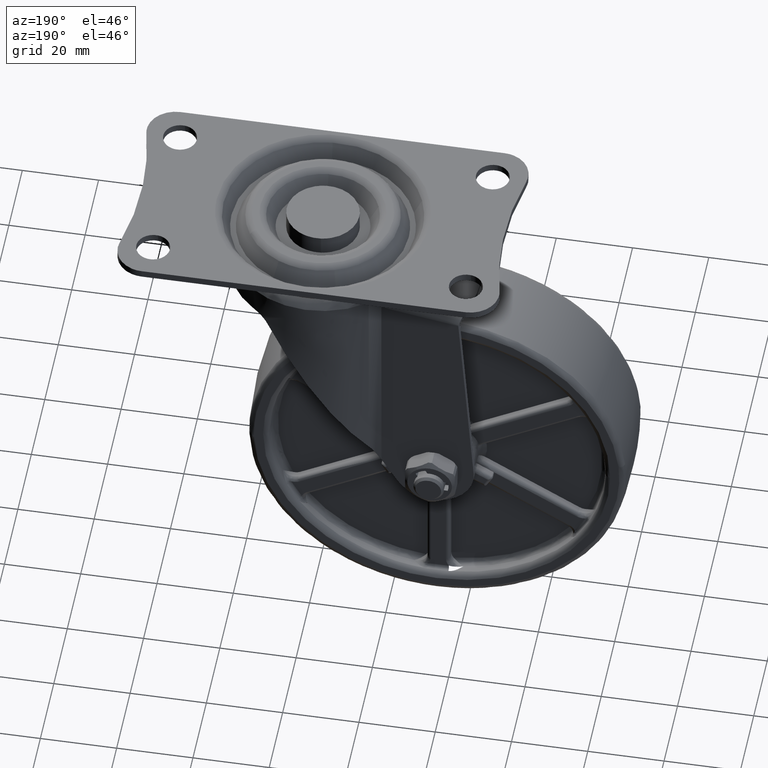
[diagram: clean part render]
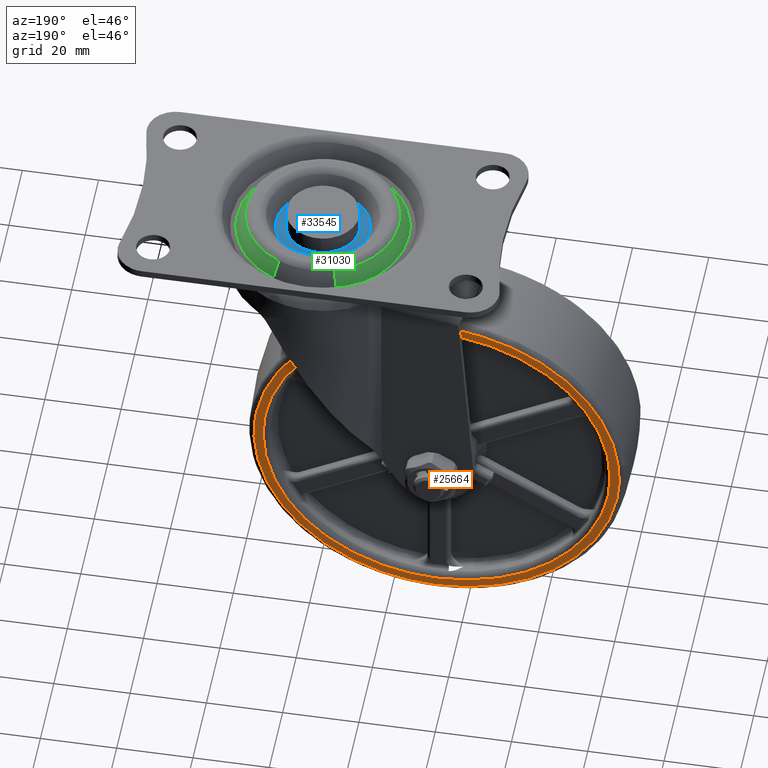
[diagram: same view with three faces highlighted in distinct colors, each labeled with its STEP entity id]
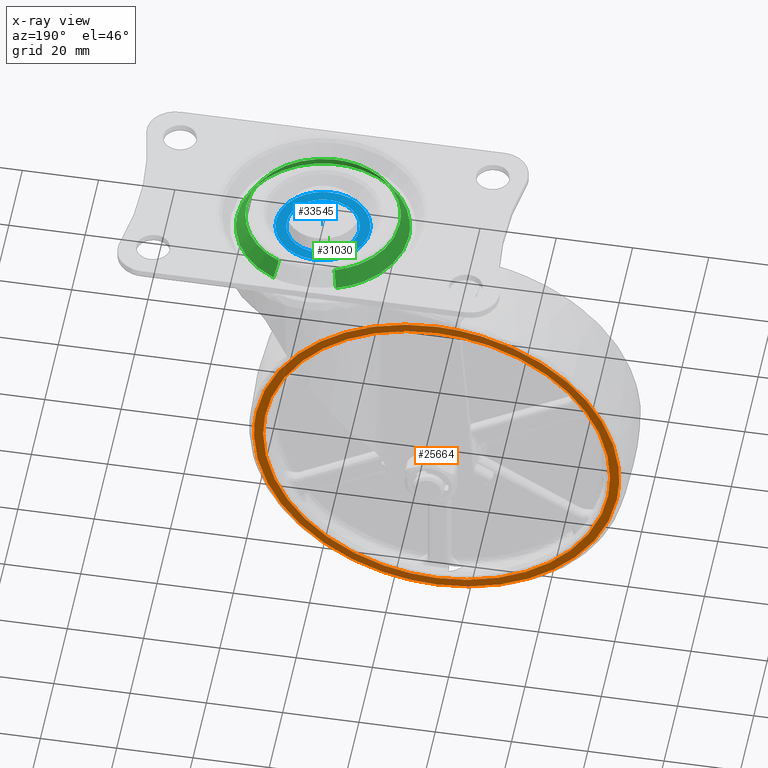
[diagram: x-ray of the same camera — body ghosted, the three highlighted faces saturated]
A machine part, auxiliary view with three faces highlighted in distinct colors.
The next image is the same camera in x-ray (body ghosted, the three faces saturated) — at least one of them is partly hidden behind the body in this view.
Their STEP definitions:

[orange] entity #25664 — the highlighted face is a freeform B-spline surface patch.
#2230=CARTESIAN_POINT('',(-77.499999999943384,12.500000000000000,-70.000000000000028));
#2231=VERTEX_POINT('',#2230);
#2232=CARTESIAN_POINT('',(-32.0,12.500000000000000,-24.500000000000011));
#2233=VERTEX_POINT('',#2232);
#2234=CARTESIAN_POINT('',(-77.499999999943412,12.500000000000011,-70.000000000000057));
#2235=CARTESIAN_POINT('',(-77.500000000000043,12.499999999999998,-24.499999999999993));
#2236=CARTESIAN_POINT('',(-32.0,12.500000000000000,-24.500000000000011));
#2244=(BOUNDED_CURVE()B_SPLINE_CURVE(2,(#2234,#2235,#2236),.UNSPECIFIED.,.F.,.U.)B_SPLINE_CURVE_WITH_KNOTS((3,3),(0.750000000000000,1.0),.UNSPECIFIED.)CURVE()GEOMETRIC_REPRESENTATION_ITEM()RATIONAL_B_SPLINE_CURVE((1.0,0.707106781186547,1.0))REPRESENTATION_ITEM(''));
#2245=EDGE_CURVE('',#2231,#2233,#2244,.T.);
#2247=CARTESIAN_POINT('',(13.499999999943400,12.500000000000000,-70.0));
#2248=VERTEX_POINT('',#2247);
#2249=CARTESIAN_POINT('',(-32.0,12.500000000000000,-24.500000000000011));
#2250=CARTESIAN_POINT('',(13.500000000000020,12.499999999999998,-24.499999999999993));
#2251=CARTESIAN_POINT('',(13.499999999943400,12.500000000000000,-70.0));
#2259=(BOUNDED_CURVE()B_SPLINE_CURVE(2,(#2249,#2250,#2251),.UNSPECIFIED.,.F.,.U.)B_SPLINE_CURVE_WITH_KNOTS((3,3),(0.0,0.250000000000000),.UNSPECIFIED.)CURVE()GEOMETRIC_REPRESENTATION_ITEM()RATIONAL_B_SPLINE_CURVE((1.0,0.707106781186547,1.0))REPRESENTATION_ITEM(''));
#2260=EDGE_CURVE('',#2233,#2248,#2259,.T.);
#2421=CARTESIAN_POINT('',(-32.0,12.500000000000000,-115.500000000000000));
#2422=VERTEX_POINT('',#2421);
#2423=CARTESIAN_POINT('',(-32.0,12.500000000000000,-115.500000000000000));
#2424=CARTESIAN_POINT('',(-77.499999999999801,12.500000000000000,-115.500000000000040));
#2425=CARTESIAN_POINT('',(-77.499999999943384,12.500000000000005,-70.000000000000028));
#2433=(BOUNDED_CURVE()B_SPLINE_CURVE(2,(#2423,#2424,#2425),.UNSPECIFIED.,.F.,.U.)B_SPLINE_CURVE_WITH_KNOTS((3,3),(0.500000000000000,0.749999999999999),.UNSPECIFIED.)CURVE()GEOMETRIC_REPRESENTATION_ITEM()RATIONAL_B_SPLINE_CURVE((1.0,0.707106781186549,0.999999999999998))REPRESENTATION_ITEM(''));
#2434=EDGE_CURVE('',#2422,#2231,#2433,.T.);
#2541=CARTESIAN_POINT('',(13.499999999943403,12.500000000000004,-70.0));
#2542=CARTESIAN_POINT('',(13.500000000000012,12.499999999999998,-115.500000000000010));
#2543=CARTESIAN_POINT('',(-32.0,12.500000000000000,-115.500000000000000));
#2551=(BOUNDED_CURVE()B_SPLINE_CURVE(2,(#2541,#2542,#2543),.UNSPECIFIED.,.F.,.U.)B_SPLINE_CURVE_WITH_KNOTS((3,3),(0.250000000000000,0.500000000000000),.UNSPECIFIED.)CURVE()GEOMETRIC_REPRESENTATION_ITEM()RATIONAL_B_SPLINE_CURVE((1.000000000000000,0.707106781186547,1.0))REPRESENTATION_ITEM(''));
#2552=EDGE_CURVE('',#2248,#2422,#2551,.T.);
#2586=CARTESIAN_POINT('',(15.861236137547550,12.500000000000000,-71.471769431308090));
#2587=VERTEX_POINT('',#2586);
#2588=CARTESIAN_POINT('',(-32.0,12.500000000000000,-117.883859752259500));
#2589=VERTEX_POINT('',#2588);
#2590=CARTESIAN_POINT('',(15.861236137547545,12.499999999999996,-71.471769431308090));
#2591=CARTESIAN_POINT('',(14.434028988589604,12.500000000000000,-117.883859752259510));
#2592=CARTESIAN_POINT('',(-32.0,12.500000000000000,-117.883859752259500));
#2600=(BOUNDED_CURVE()B_SPLINE_CURVE(2,(#2590,#2591,#2592),.UNSPECIFIED.,.F.,.U.)B_SPLINE_CURVE_WITH_KNOTS((3,3),(0.255400348398393,0.500000000000000),.UNSPECIFIED.)CURVE()GEOMETRIC_REPRESENTATION_ITEM()RATIONAL_B_SPLINE_CURVE((0.987619536386765,0.713433682887025,1.0))REPRESENTATION_ITEM(''));
#2601=EDGE_CURVE('',#2587,#2589,#2600,.T.);
#2665=CARTESIAN_POINT('',(-79.698722089266639,12.500000000000000,-65.793345619564121));
#2666=VERTEX_POINT('',#2665);
#2680=CARTESIAN_POINT('',(-32.0,12.500000000000000,-117.883859752259500));
#2681=CARTESIAN_POINT('',(-79.883859752259511,12.499999999999998,-117.883859752259510));
#2682=CARTESIAN_POINT('',(-79.883859752259511,12.500000000000000,-70.0));
#2683=CARTESIAN_POINT('',(-79.883859752259511,12.499999999999998,-67.892598793351340));
#2684=CARTESIAN_POINT('',(-79.698722089266639,12.499999999999998,-65.793345619564121));
#2692=(BOUNDED_CURVE()B_SPLINE_CURVE(2,(#2680,#2681,#2682,#2683,#2684),.UNSPECIFIED.,.F.,.U.)B_SPLINE_CURVE_WITH_KNOTS((3,2,3),(0.500000000000000,0.750000000000000,0.765281545150509),.UNSPECIFIED.)CURVE()GEOMETRIC_REPRESENTATION_ITEM()RATIONAL_B_SPLINE_CURVE((1.0,0.707106781186547,1.0,0.982096556209698,0.966381850696444))REPRESENTATION_ITEM(''));
#2693=EDGE_CURVE('',#2589,#2666,#2692,.T.);
#2721=CARTESIAN_POINT('',(-32.0,12.500000000000000,-22.116140247740500));
#2722=VERTEX_POINT('',#2721);
#2723=CARTESIAN_POINT('',(-32.0,12.500000000000000,-22.116140247740500));
#2724=CARTESIAN_POINT('',(15.883859752259506,12.499999999999998,-22.116140247740503));
#2725=CARTESIAN_POINT('',(15.883859752259511,12.500000000000000,-70.0));
#2726=CARTESIAN_POINT('',(15.883859752259506,12.499999999999996,-70.736058597991217));
#2727=CARTESIAN_POINT('',(15.861236137547548,12.499999999999998,-71.471769431308090));
#2735=(BOUNDED_CURVE()B_SPLINE_CURVE(2,(#2723,#2724,#2725,#2726,#2727),.UNSPECIFIED.,.F.,.U.)B_SPLINE_CURVE_WITH_KNOTS((3,2,3),(0.0,0.250000000000000,0.255400348398393),.UNSPECIFIED.)CURVE()GEOMETRIC_REPRESENTATION_ITEM()RATIONAL_B_SPLINE_CURVE((1.0,0.707106781186547,1.0,0.993673098299523,0.987619536386765))REPRESENTATION_ITEM(''));
#2736=EDGE_CURVE('',#2722,#2587,#2735,.T.);
#2738=CARTESIAN_POINT('',(-79.698722089266639,12.500000000000000,-65.793345619564136));
#2739=CARTESIAN_POINT('',(-75.846733987264258,12.500000000000000,-22.116140247740510));
#2740=CARTESIAN_POINT('',(-32.0,12.500000000000000,-22.116140247740500));
#2748=(BOUNDED_CURVE()B_SPLINE_CURVE(2,(#2738,#2739,#2740),.UNSPECIFIED.,.F.,.U.)B_SPLINE_CURVE_WITH_KNOTS((3,3),(0.765281545150508,1.0),.UNSPECIFIED.)CURVE()GEOMETRIC_REPRESENTATION_ITEM()RATIONAL_B_SPLINE_CURVE((0.966381850696445,0.725010224976849,1.0))REPRESENTATION_ITEM(''));
#2749=EDGE_CURVE('',#2666,#2722,#2748,.T.);
#25647=CARTESIAN_POINT('',(-84.653985450819619,12.500000000000000,-17.332543186255759));
#25648=CARTESIAN_POINT('',(-84.653985450819619,12.500000000000000,-122.667452532593600));
#25649=CARTESIAN_POINT('',(20.653958794576159,12.500000000000000,-17.332543186255759));
#25650=CARTESIAN_POINT('',(20.653958794576159,12.500000000000000,-122.667452532593600));
#25651=B_SPLINE_SURFACE_WITH_KNOTS('',1,1,((#25647,#25649),(#25648,#25650)),.UNSPECIFIED.,.F.,.F.,.U.,(2,2),(2,2),(0.0,105.334909346337800),(0.0,105.307944245395800),.UNSPECIFIED.);
#25652=ORIENTED_EDGE('',*,*,#2736,.T.);
#25653=ORIENTED_EDGE('',*,*,#2601,.T.);
#25654=ORIENTED_EDGE('',*,*,#2693,.T.);
#25655=ORIENTED_EDGE('',*,*,#2749,.T.);
#25656=EDGE_LOOP('',(#25652,#25653,#25654,#25655));
#25657=FACE_OUTER_BOUND('',#25656,.T.);
#25658=ORIENTED_EDGE('',*,*,#2260,.F.);
#25659=ORIENTED_EDGE('',*,*,#2245,.F.);
#25660=ORIENTED_EDGE('',*,*,#2434,.F.);
#25661=ORIENTED_EDGE('',*,*,#2552,.F.);
#25662=EDGE_LOOP('',(#25658,#25659,#25660,#25661));
#25663=FACE_BOUND('',#25662,.T.);
#25664=ADVANCED_FACE('',(#25657,#25663),#25651,.F.);

[blue] entity #33545 — the highlighted face is a freeform B-spline surface patch.
#27413=CARTESIAN_POINT('',(1.179216019912222,-9.426529031323371,-3.200001000000065));
#27414=VERTEX_POINT('',#27413);
#27420=CARTESIAN_POINT('',(9.500000000000000,0.0,-3.200001000000065));
#27421=VERTEX_POINT('',#27420);
#27422=CARTESIAN_POINT('',(9.500000000000000,0.0,-3.200001000000065));
#27423=CARTESIAN_POINT('',(9.499999999999998,-8.385636701151299,-3.200001000000066));
#27424=CARTESIAN_POINT('',(1.179216019912223,-9.426529031323371,-3.200001000000066));
#27432=(BOUNDED_CURVE()B_SPLINE_CURVE(2,(#27422,#27423,#27424),.UNSPECIFIED.,.F.,.U.)B_SPLINE_CURVE_WITH_KNOTS((3,3),(0.500000000000000,0.728526071023794),.UNSPECIFIED.)CURVE()GEOMETRIC_REPRESENTATION_ITEM()RATIONAL_B_SPLINE_CURVE((1.0,0.732265053900198,0.954005430264035))REPRESENTATION_ITEM(''));
#27433=EDGE_CURVE('',#27421,#27414,#27432,.T.);
#27435=CARTESIAN_POINT('',(-0.082902087495971,9.499638269107344,-3.200001000000065));
#27436=VERTEX_POINT('',#27435);
#27437=CARTESIAN_POINT('',(-0.082902087495971,9.499638269107344,-3.200001000000065));
#27438=CARTESIAN_POINT('',(-0.041451833058099,9.500000000000000,-3.200001000000066));
#27439=CARTESIAN_POINT('',(0.0,9.500000000000000,-3.200001000000065));
#27440=CARTESIAN_POINT('',(9.500000000000000,9.500000000000000,-3.200001000000066));
#27441=CARTESIAN_POINT('',(9.500000000000000,0.0,-3.200001000000065));
#27449=(BOUNDED_CURVE()B_SPLINE_CURVE(2,(#27437,#27438,#27439,#27440,#27441),.UNSPECIFIED.,.F.,.U.)B_SPLINE_CURVE_WITH_KNOTS((3,2,3),(0.248460105655318,0.250000000000000,0.500000000000000),.UNSPECIFIED.)CURVE()GEOMETRIC_REPRESENTATION_ITEM()RATIONAL_B_SPLINE_CURVE((0.996414028077970,0.998195901555014,1.0,0.707106781186548,1.0))REPRESENTATION_ITEM(''));
#27450=EDGE_CURVE('',#27436,#27421,#27449,.T.);
#27530=CARTESIAN_POINT('',(-9.500000000000000,0.0,-3.200001000000065));
#27531=VERTEX_POINT('',#27530);
#27532=CARTESIAN_POINT('',(-9.500000000000000,0.0,-3.200001000000065));
#27533=CARTESIAN_POINT('',(-9.500000000000000,9.417456500133953,-3.200001000000065));
#27534=CARTESIAN_POINT('',(-0.082902087495971,9.499638269107344,-3.200001000000065));
#27542=(BOUNDED_CURVE()B_SPLINE_CURVE(2,(#27532,#27533,#27534),.UNSPECIFIED.,.F.,.U.)B_SPLINE_CURVE_WITH_KNOTS((3,3),(0.0,0.248460105655318),.UNSPECIFIED.)CURVE()GEOMETRIC_REPRESENTATION_ITEM()RATIONAL_B_SPLINE_CURVE((1.0,0.708910879631533,0.996414028077970))REPRESENTATION_ITEM(''));
#27543=EDGE_CURVE('',#27531,#27436,#27542,.T.);
#27545=CARTESIAN_POINT('',(1.179216019912223,-9.426529031323373,-3.200001000000065));
#27546=CARTESIAN_POINT('',(0.591896811723841,-9.500000000000002,-3.200001000000065));
#27547=CARTESIAN_POINT('',(0.0,-9.500000000000000,-3.200001000000065));
#27548=CARTESIAN_POINT('',(-9.500000000000000,-9.500000000000000,-3.200001000000066));
#27549=CARTESIAN_POINT('',(-9.500000000000000,0.0,-3.200001000000065));
#27557=(BOUNDED_CURVE()B_SPLINE_CURVE(2,(#27545,#27546,#27547,#27548,#27549),.UNSPECIFIED.,.F.,.U.)B_SPLINE_CURVE_WITH_KNOTS((3,2,3),(0.728526071023794,0.750000000000000,1.0),.UNSPECIFIED.)CURVE()GEOMETRIC_REPRESENTATION_ITEM()RATIONAL_B_SPLINE_CURVE((0.954005430264036,0.974841727286350,1.0,0.707106781186548,1.0))REPRESENTATION_ITEM(''));
#27558=EDGE_CURVE('',#27414,#27531,#27557,.T.);
#30662=CARTESIAN_POINT('',(0.961123922894711,-12.212237338235960,-3.200000999960109));
#30663=VERTEX_POINT('',#30662);
#30664=CARTESIAN_POINT('',(-11.390839142182640,-4.506804148994178,-3.200000999966733));
#30665=VERTEX_POINT('',#30664);
#30666=CARTESIAN_POINT('',(0.961123922894711,-12.212237338235964,-3.200000999960109));
#30667=CARTESIAN_POINT('',(0.481303811071807,-12.250000000000014,-3.200001000000045));
#30668=CARTESIAN_POINT('',(0.0,-12.250000000000011,-3.200001000000045));
#30669=CARTESIAN_POINT('',(-8.327231030929831,-12.250000000000011,-3.200001000000046));
#30670=CARTESIAN_POINT('',(-11.390839142182632,-4.506804148994178,-3.200000999966733));
#30678=(BOUNDED_CURVE()B_SPLINE_CURVE(2,(#30666,#30667,#30668,#30669,#30670),.UNSPECIFIED.,.F.,.U.)B_SPLINE_CURVE_WITH_KNOTS((3,2,3),(0.736331300626400,0.750000000000000,0.937532549933465),.UNSPECIFIED.)CURVE()GEOMETRIC_REPRESENTATION_ITEM()RATIONAL_B_SPLINE_CURVE((0.969723356158527,0.983986122573891,1.0,0.780291951270771,0.890203187494329))REPRESENTATION_ITEM(''));
#30679=EDGE_CURVE('',#30663,#30665,#30678,.T.);
#30739=CARTESIAN_POINT('',(-12.250000000000000,-1.421085E-014,-3.200001000000045));
#30740=VERTEX_POINT('',#30739);
#30741=CARTESIAN_POINT('',(-11.390839142182639,-4.506804148994178,-3.200000999966733));
#30742=CARTESIAN_POINT('',(-12.250000000000004,-2.335295735314394,-3.200001000000046));
#30743=CARTESIAN_POINT('',(-12.250000000000000,-1.421085E-014,-3.200001000000045));
#30751=(BOUNDED_CURVE()B_SPLINE_CURVE(2,(#30741,#30742,#30743),.UNSPECIFIED.,.F.,.U.)B_SPLINE_CURVE_WITH_KNOTS((3,3),(0.937532549933466,1.0),.UNSPECIFIED.)CURVE()GEOMETRIC_REPRESENTATION_ITEM()RATIONAL_B_SPLINE_CURVE((0.890203187494330,0.926814829915777,1.0))REPRESENTATION_ITEM(''));
#30752=EDGE_CURVE('',#30665,#30740,#30751,.T.);
#30754=CARTESIAN_POINT('',(12.250000000000000,-1.421085E-014,-3.200001000000045));
#30755=VERTEX_POINT('',#30754);
#30756=CARTESIAN_POINT('',(-12.250000000000000,-1.421085E-014,-3.200001000000045));
#30757=CARTESIAN_POINT('',(-12.249999999999996,12.249999999999984,-3.200001000000045));
#30758=CARTESIAN_POINT('',(0.0,12.249999999999989,-3.200001000000045));
#30759=CARTESIAN_POINT('',(12.249999999999996,12.249999999999984,-3.200001000000045));
#30760=CARTESIAN_POINT('',(12.250000000000000,-1.421085E-014,-3.200001000000045));
#30768=(BOUNDED_CURVE()B_SPLINE_CURVE(2,(#30756,#30757,#30758,#30759,#30760),.UNSPECIFIED.,.F.,.U.)B_SPLINE_CURVE_WITH_KNOTS((3,2,3),(0.0,0.250000000000000,0.500000000000000),.UNSPECIFIED.)CURVE()GEOMETRIC_REPRESENTATION_ITEM()RATIONAL_B_SPLINE_CURVE((1.0,0.707106781186547,1.0,0.707106781186547,1.0))REPRESENTATION_ITEM(''));
#30769=EDGE_CURVE('',#30740,#30755,#30768,.T.);
#30771=CARTESIAN_POINT('',(12.250000000000000,-1.421085E-014,-3.200001000000045));
#30772=CARTESIAN_POINT('',(12.249999999999998,-11.323783522391171,-3.200001000000045));
#30773=CARTESIAN_POINT('',(0.961123922894711,-12.212237338235962,-3.200000999960109));
#30781=(BOUNDED_CURVE()B_SPLINE_CURVE(2,(#30771,#30772,#30773),.UNSPECIFIED.,.F.,.U.)B_SPLINE_CURVE_WITH_KNOTS((3,3),(0.500000000000000,0.736331300626400),.UNSPECIFIED.)CURVE()GEOMETRIC_REPRESENTATION_ITEM()RATIONAL_B_SPLINE_CURVE((1.0,0.723120658612656,0.969723356158528))REPRESENTATION_ITEM(''));
#30782=EDGE_CURVE('',#30755,#30663,#30781,.T.);
#33528=CARTESIAN_POINT('',(13.473774952514241,-13.473520585265319,-3.200001000000045));
#33529=CARTESIAN_POINT('',(-13.473775609655460,-13.473520585265319,-3.200001000000046));
#33530=CARTESIAN_POINT('',(13.473774952514241,13.473763508465421,-3.200001000000045));
#33531=CARTESIAN_POINT('',(-13.473775609655460,13.473763508465421,-3.200001000000046));
#33532=B_SPLINE_SURFACE_WITH_KNOTS('',1,1,((#33528,#33530),(#33529,#33531)),.UNSPECIFIED.,.F.,.F.,.U.,(2,2),(2,2),(0.0,26.947550562169699),(0.0,26.947284093730740),.UNSPECIFIED.);
#33533=ORIENTED_EDGE('',*,*,#30752,.F.);
#33534=ORIENTED_EDGE('',*,*,#30679,.F.);
#33535=ORIENTED_EDGE('',*,*,#30782,.F.);
#33536=ORIENTED_EDGE('',*,*,#30769,.F.);
#33537=EDGE_LOOP('',(#33533,#33534,#33535,#33536));
#33538=FACE_OUTER_BOUND('',#33537,.T.);
#33539=ORIENTED_EDGE('',*,*,#27543,.T.);
#33540=ORIENTED_EDGE('',*,*,#27450,.T.);
#33541=ORIENTED_EDGE('',*,*,#27433,.T.);
#33542=ORIENTED_EDGE('',*,*,#27558,.T.);
#33543=EDGE_LOOP('',(#33539,#33540,#33541,#33542));
#33544=FACE_BOUND('',#33543,.T.);
#33545=ADVANCED_FACE('',(#33538,#33544),#33532,.F.);

[green] entity #31030 — the highlighted face is a freeform B-spline surface patch.
#30864=CARTESIAN_POINT('',(8.332149647669320,18.197685363743251,1.105000027758713));
#30865=CARTESIAN_POINT('',(16.225558647494758,14.583540833700853,1.105000027758713));
#30866=CARTESIAN_POINT('',(18.980229959105760,6.350696107389783,1.105000027758713));
#30867=CARTESIAN_POINT('',(25.330926066495561,-12.629533851715976,1.105000027758713));
#30868=CARTESIAN_POINT('',(6.350696107389797,-18.980229959105770,1.105000027758713));
#30869=CARTESIAN_POINT('',(-12.629533851715962,-25.330926066495572,1.105000027758713));
#30870=CARTESIAN_POINT('',(-18.980229959105760,-6.350696107389811,1.105000027758713));
#30871=CARTESIAN_POINT('',(-25.330926066495561,12.629533851715946,1.105000027758713));
#30872=CARTESIAN_POINT('',(-6.350696107389797,18.980229959105749,1.105000027758713));
#30873=CARTESIAN_POINT('',(9.392742443527444,20.514054465860561,-3.307626025694015));
#30874=CARTESIAN_POINT('',(18.290897286140080,16.439868312246844,-3.307626025694015));
#30875=CARTESIAN_POINT('',(21.396208549215331,7.159071235657661,-3.307626025694015));
#30876=CARTESIAN_POINT('',(28.555279784873001,-14.237137313557678,-3.307626025694015));
#30877=CARTESIAN_POINT('',(7.159071235657675,-21.396208549215348,-3.307626025694015));
#30878=CARTESIAN_POINT('',(-14.237137313557662,-28.555279784873015,-3.307626025694015));
#30879=CARTESIAN_POINT('',(-21.396208549215331,-7.159071235657689,-3.307626025694015));
#30880=CARTESIAN_POINT('',(-28.555279784873001,14.237137313557650,-3.307626025694015));
#30881=CARTESIAN_POINT('',(-7.159071235657675,21.396208549215320,-3.307626025694015));
#30889=(BOUNDED_SURFACE()B_SPLINE_SURFACE(2,1,((#30864,#30873),(#30865,#30874),(#30866,#30875),(#30867,#30876),(#30868,#30877),(#30869,#30878),(#30870,#30879),(#30871,#30880),(#30872,#30881)),.UNSPECIFIED.,.F.,.F.,.U.)B_SPLINE_SURFACE_WITH_KNOTS((3,2,2,2,3),(2,2),(0.0,19.438730025187350,56.820903150547629,94.203076275907918,131.585249401268190),(0.0,5.095261679588179),.UNSPECIFIED.)GEOMETRIC_REPRESENTATION_ITEM()RATIONAL_B_SPLINE_SURFACE(((0.853787705168325,0.853787705168325),(0.847695526217005,0.847695526217005),(1.0,1.0),(0.707106781186548,0.707106781186548),(1.0,1.0),(0.707106781186548,0.707106781186548),(1.0,1.0),(0.707106781186548,0.707106781186548),(1.0,1.0)))REPRESENTATION_ITEM('')SURFACE());
#30890=CARTESIAN_POINT('',(8.357386835549530,18.252804201355840,1.000000000477184));
#30891=VERTEX_POINT('',#30890);
#30892=CARTESIAN_POINT('',(17.343373433234920,10.110300383043510,1.000000002691426));
#30893=VERTEX_POINT('',#30892);
#30894=CARTESIAN_POINT('',(8.357386835549530,18.252804201355840,1.000000000477184));
#30895=CARTESIAN_POINT('',(14.140232413704181,15.605020497435312,1.000000001207343));
#30896=CARTESIAN_POINT('',(17.343373433234923,10.110300383043514,1.000000002691426));
#30904=(BOUNDED_CURVE()B_SPLINE_CURVE(2,(#30894,#30895,#30896),.UNSPECIFIED.,.F.,.U.)B_SPLINE_CURVE_WITH_KNOTS((3,3),(0.320706039692629,0.414086837569131),.UNSPECIFIED.)CURVE()GEOMETRIC_REPRESENTATION_ITEM()RATIONAL_B_SPLINE_CURVE((0.881182210614100,0.833663089825618,0.867872643617094))REPRESENTATION_ITEM(''));
#30905=EDGE_CURVE('',#30891,#30893,#30904,.T.);
#30906=ORIENTED_EDGE('',*,*,#30905,.T.);
#30907=CARTESIAN_POINT('',(20.075128292053300,-1.421085E-014,1.0));
#30908=VERTEX_POINT('',#30907);
#30909=CARTESIAN_POINT('',(17.343373433234927,10.110300383043514,1.000000002691426));
#30910=CARTESIAN_POINT('',(20.075128292053304,5.424203747184200,1.0));
#30911=CARTESIAN_POINT('',(20.075128292053300,-1.421085E-014,1.0));
#30919=(BOUNDED_CURVE()B_SPLINE_CURVE(2,(#30909,#30910,#30911),.UNSPECIFIED.,.F.,.U.)B_SPLINE_CURVE_WITH_KNOTS((3,3),(0.414086837569131,0.500000000000000),.UNSPECIFIED.)CURVE()GEOMETRIC_REPRESENTATION_ITEM()RATIONAL_B_SPLINE_CURVE((0.867872643617094,0.899346469268719,1.0))REPRESENTATION_ITEM(''));
#30920=EDGE_CURVE('',#30893,#30908,#30919,.T.);
#30921=ORIENTED_EDGE('',*,*,#30920,.T.);
#30922=CARTESIAN_POINT('',(9.101844310574894,-17.893216760668999,1.000000001905392));
#30923=VERTEX_POINT('',#30922);
#30924=CARTESIAN_POINT('',(20.075128292053300,-1.421085E-014,1.0));
#30925=CARTESIAN_POINT('',(20.075128292053304,-12.311374004786904,1.0));
#30926=CARTESIAN_POINT('',(9.101844310574894,-17.893216760668995,1.000000001905392));
#30934=(BOUNDED_CURVE()B_SPLINE_CURVE(2,(#30924,#30925,#30926),.UNSPECIFIED.,.F.,.U.)B_SPLINE_CURVE_WITH_KNOTS((3,3),(0.500000000000000,0.672901120403919),.UNSPECIFIED.)CURVE()GEOMETRIC_REPRESENTATION_ITEM()RATIONAL_B_SPLINE_CURVE((1.0,0.797433737233776,0.875058944774070))REPRESENTATION_ITEM(''));
#30935=EDGE_CURVE('',#30908,#30923,#30934,.T.);
#30936=ORIENTED_EDGE('',*,*,#30935,.T.);
#30937=CARTESIAN_POINT('',(-20.075128292053300,-1.421085E-014,1.0));
#30938=VERTEX_POINT('',#30937);
#30939=CARTESIAN_POINT('',(9.101844310574894,-17.893216760668995,1.000000001905392));
#30940=CARTESIAN_POINT('',(4.812448158690433,-20.075128292053318,1.0));
#30941=CARTESIAN_POINT('',(0.0,-20.075128292053311,1.0));
#30942=CARTESIAN_POINT('',(-20.075128292053297,-20.075128292053311,1.0));
#30943=CARTESIAN_POINT('',(-20.075128292053300,-1.421085E-014,1.0));
#30951=(BOUNDED_CURVE()B_SPLINE_CURVE(2,(#30939,#30940,#30941,#30942,#30943),.UNSPECIFIED.,.F.,.U.)B_SPLINE_CURVE_WITH_KNOTS((3,2,3),(0.672901120403919,0.750000000000000,1.0),.UNSPECIFIED.)CURVE()GEOMETRIC_REPRESENTATION_ITEM()RATIONAL_B_SPLINE_CURVE((0.875058944774070,0.909673043952772,1.0,0.707106781186548,1.0))REPRESENTATION_ITEM(''));
#30952=EDGE_CURVE('',#30923,#30938,#30951,.T.);
#30953=ORIENTED_EDGE('',*,*,#30952,.T.);
#30954=CARTESIAN_POINT('',(-6.369931685151782,19.037719040616579,0.999999999975928));
#30955=VERTEX_POINT('',#30954);
#30956=CARTESIAN_POINT('',(-20.075128292053300,-1.421085E-014,1.0));
#30957=CARTESIAN_POINT('',(-20.075128292053300,14.452024402838031,1.0));
#30958=CARTESIAN_POINT('',(-6.369931685151782,19.037719040616587,0.999999999975928));
#30966=(BOUNDED_CURVE()B_SPLINE_CURVE(2,(#30956,#30957,#30958),.UNSPECIFIED.,.F.,.U.)B_SPLINE_CURVE_WITH_KNOTS((3,3),(0.0,0.196058979251553),.UNSPECIFIED.)CURVE()GEOMETRIC_REPRESENTATION_ITEM()RATIONAL_B_SPLINE_CURVE((1.0,0.770302617958932,0.900879109995669))REPRESENTATION_ITEM(''));
#30967=EDGE_CURVE('',#30938,#30955,#30966,.T.);
#30968=ORIENTED_EDGE('',*,*,#30967,.T.);
#30969=CARTESIAN_POINT('',(-7.139354769255171,21.337282242105839,-3.200001000022084));
#30970=VERTEX_POINT('',#30969);
#30971=CARTESIAN_POINT('',(-6.369931685151782,19.037719040616579,0.999999999975928));
#30972=CARTESIAN_POINT('',(-7.139354769255171,21.337282242105839,-3.200001000022084));
#30973=QUASI_UNIFORM_CURVE('',1,(#30971,#30972),.UNSPECIFIED.,.F.,.U.);
#30974=EDGE_CURVE('',#30955,#30970,#30973,.T.);
#30975=ORIENTED_EDGE('',*,*,#30974,.T.);
#30976=CARTESIAN_POINT('',(-22.500000000000000,-1.421085E-014,-3.200001000000045));
#30977=VERTEX_POINT('',#30976);
#30978=CARTESIAN_POINT('',(-22.500000000000000,-1.421085E-014,-3.200001000000045));
#30979=CARTESIAN_POINT('',(-22.500000000000000,16.197682243134722,-3.200001000000045));
#30980=CARTESIAN_POINT('',(-7.139354769255172,21.337282242105847,-3.200001000022084));
#30988=(BOUNDED_CURVE()B_SPLINE_CURVE(2,(#30978,#30979,#30980),.UNSPECIFIED.,.F.,.U.)B_SPLINE_CURVE_WITH_KNOTS((3,3),(0.0,0.196058979252011),.UNSPECIFIED.)CURVE()GEOMETRIC_REPRESENTATION_ITEM()RATIONAL_B_SPLINE_CURVE((1.0,0.770302617958394,0.900879109996280))REPRESENTATION_ITEM(''));
#30989=EDGE_CURVE('',#30977,#30970,#30988,.T.);
#30990=ORIENTED_EDGE('',*,*,#30989,.F.);
#30991=CARTESIAN_POINT('',(22.500000000000000,-1.421085E-014,-3.200001000000045));
#30992=VERTEX_POINT('',#30991);
#30993=CARTESIAN_POINT('',(22.500000000000000,-1.421085E-014,-3.200001000000045));
#30994=CARTESIAN_POINT('',(22.500000000000000,-22.500000000000014,-3.200001000000045));
#30995=CARTESIAN_POINT('',(0.0,-22.500000000000011,-3.200001000000045));
#30996=CARTESIAN_POINT('',(-22.500000000000000,-22.500000000000014,-3.200001000000045));
#30997=CARTESIAN_POINT('',(-22.500000000000000,-1.421085E-014,-3.200001000000045));
#31005=(BOUNDED_CURVE()B_SPLINE_CURVE(2,(#30993,#30994,#30995,#30996,#30997),.UNSPECIFIED.,.F.,.U.)B_SPLINE_CURVE_WITH_KNOTS((3,2,3),(0.500000000000000,0.750000000000000,1.0),.UNSPECIFIED.)CURVE()GEOMETRIC_REPRESENTATION_ITEM()RATIONAL_B_SPLINE_CURVE((1.0,0.707106781186548,1.0,0.707106781186548,1.0))REPRESENTATION_ITEM(''));
#31006=EDGE_CURVE('',#30992,#30977,#31005,.T.);
#31007=ORIENTED_EDGE('',*,*,#31006,.F.);
#31008=CARTESIAN_POINT('',(9.366874326556637,20.457557658491350,-3.200001000000232));
#31009=VERTEX_POINT('',#31008);
#31010=CARTESIAN_POINT('',(9.366874326556637,20.457557658491357,-3.200001000000233));
#31011=CARTESIAN_POINT('',(22.499999999999996,14.444311123806372,-3.200001000000044));
#31012=CARTESIAN_POINT('',(22.500000000000000,-1.421085E-014,-3.200001000000045));
#31020=(BOUNDED_CURVE()B_SPLINE_CURVE(2,(#31010,#31011,#31012),.UNSPECIFIED.,.F.,.U.)B_SPLINE_CURVE_WITH_KNOTS((3,3),(0.320706039690693,0.500000000000000),.UNSPECIFIED.)CURVE()GEOMETRIC_REPRESENTATION_ITEM()RATIONAL_B_SPLINE_CURVE((0.881182210616070,0.789944059404782,1.0))REPRESENTATION_ITEM(''));
#31021=EDGE_CURVE('',#31009,#30992,#31020,.T.);
#31022=ORIENTED_EDGE('',*,*,#31021,.F.);
#31023=CARTESIAN_POINT('',(8.357386835549530,18.252804201355840,1.000000000477184));
#31024=CARTESIAN_POINT('',(9.366874326556637,20.457557658491350,-3.200001000000232));
#31025=QUASI_UNIFORM_CURVE('',1,(#31023,#31024),.UNSPECIFIED.,.F.,.U.);
#31026=EDGE_CURVE('',#30891,#31009,#31025,.T.);
#31027=ORIENTED_EDGE('',*,*,#31026,.F.);
#31028=EDGE_LOOP('',(#30906,#30921,#30936,#30953,#30968,#30975,#30990,#31007,#31022,#31027));
#31029=FACE_OUTER_BOUND('',#31028,.T.);
#31030=ADVANCED_FACE('',(#31029),#30889,.T.);